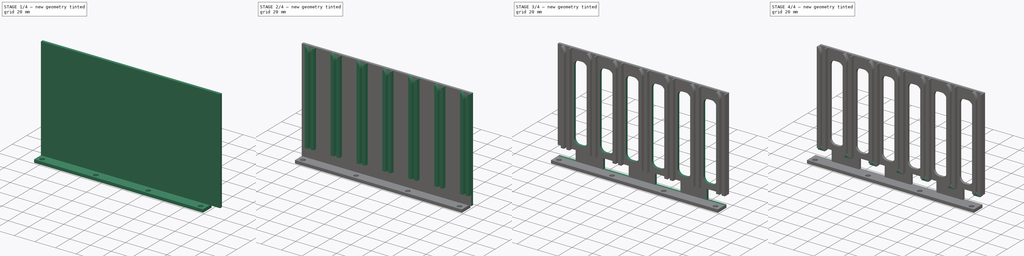
[diagram: build sequence overview — one tinted view per stage of 4, left to right]
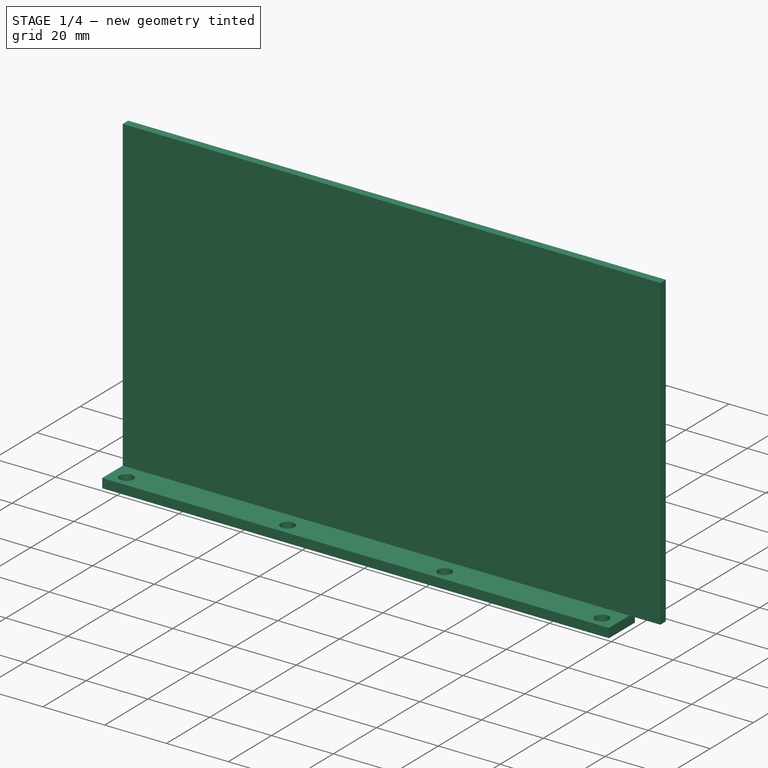
[diagram: stage 1 of 4 — iso view after this stage's code; geometry added in this stage tinted green]
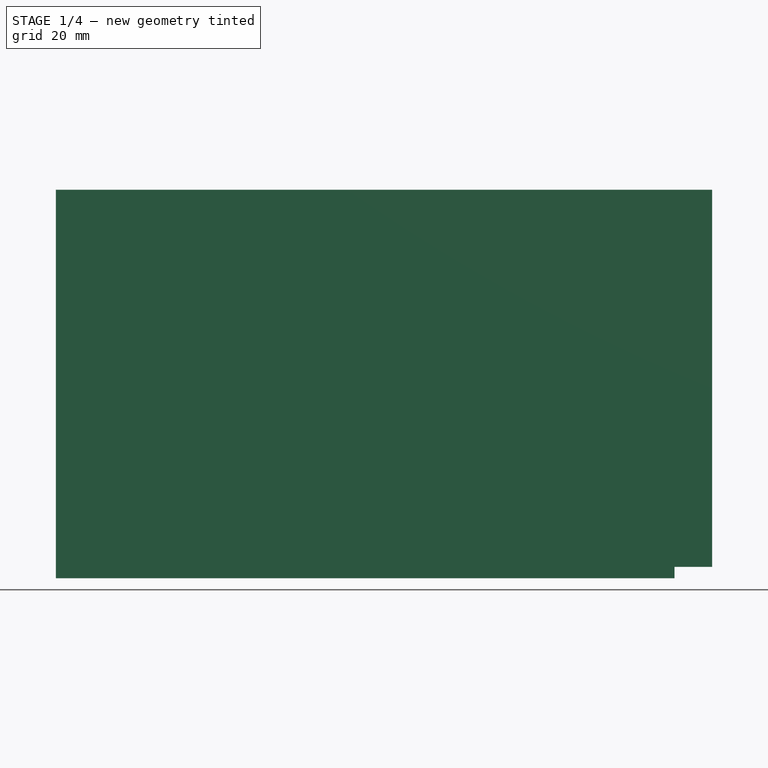
[diagram: stage 1 of 4 — front view after this stage's code; geometry added in this stage tinted green]
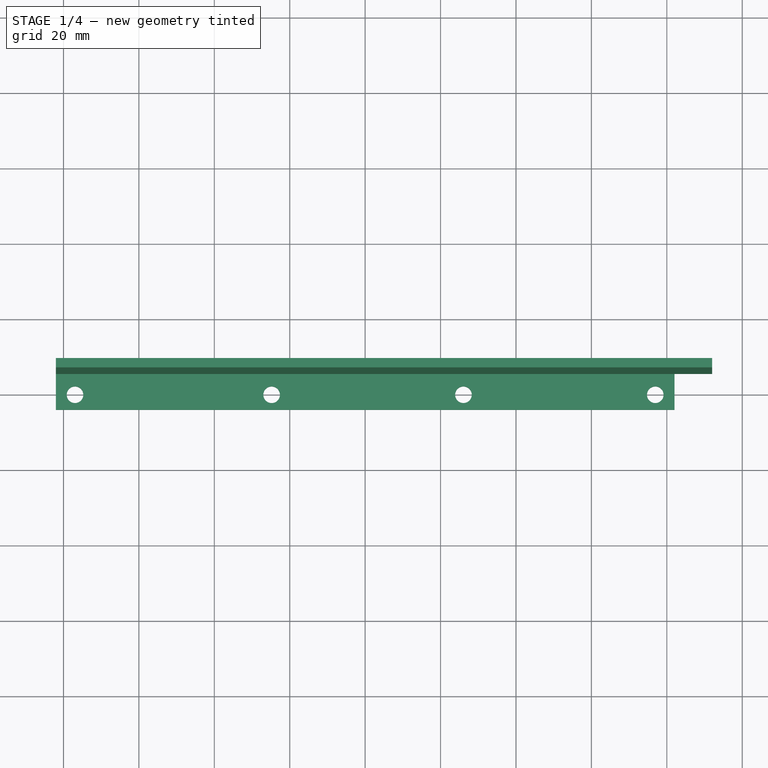
[diagram: stage 1 of 4 — top view after this stage's code; geometry added in this stage tinted green]
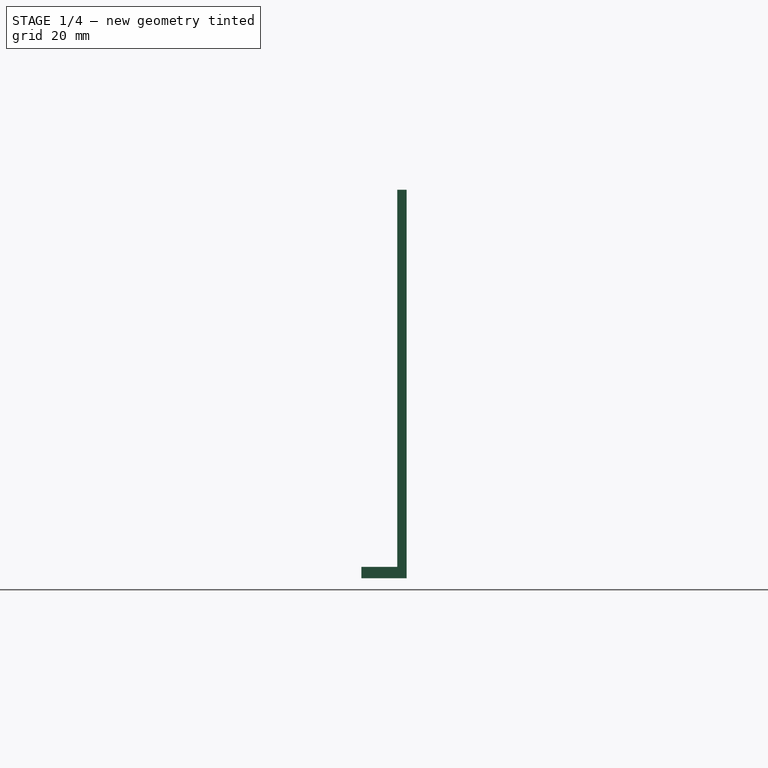
[diagram: stage 1 of 4 — right view after this stage's code; geometry added in this stage tinted green]
FCSTD DOCUMENT  (FreeCAD 0.18R14555 (Git shallow))
Label: Card Guide V3
License: All rights reserved
LicenseURL: http://en.wikipedia.org/wiki/All_rights_reserved
objects: Sketcher::SketchObject×7, PartDesign::Pocket×4, PartDesign::Pad×3, PartDesign::LinearPattern×2, Part::Feature×1, Part::FeaturePython×1, PartDesign::Body×1
note: 26 computed .brp shape members not serialized (recipe doc carries the construction recipe); baked Part::Feature solids carry a one-line shape summary decoded from their .brp

FEATURE [Sketcher::SketchObject] Sketch  label="Bottom Mounting Strip profile"
  MapMode = 5
  Support = -> [XY_Plane]
  sketch-geometry (8):
    g0: LineSegment StartX=-82.0311 StartY=8 StartZ=0 EndX=82.0311 EndY=8 EndZ=0
    g1: LineSegment StartX=82.0311 StartY=8 StartZ=0 EndX=82.0311 EndY=-4 EndZ=0
    g2: LineSegment StartX=82.0311 StartY=-4 StartZ=0 EndX=-82.0311 EndY=-4 EndZ=0
    g3: LineSegment StartX=-82.0311 StartY=-4 StartZ=0 EndX=-82.0311 EndY=8 EndZ=0
    g4: Circle CenterX=-76.9439 CenterY=0 CenterZ=0 NormalX=0 NormalY=0 NormalZ=1 AngleXU=0 Radius=2.2
    g5: Circle CenterX=-24.8001 CenterY=0 CenterZ=0 NormalX=0 NormalY=0 NormalZ=1 AngleXU=0 Radius=2.2
    g6: Circle CenterX=26.0719 CenterY=0 CenterZ=0 NormalX=0 NormalY=0 NormalZ=1 AngleXU=0 Radius=2.2
    g7: Circle CenterX=76.9439 CenterY=0 CenterZ=0 NormalX=0 NormalY=0 NormalZ=1 AngleXU=0 Radius=2.2
  constraints (24):
    c: Coincident(g0,g1)
    c: Coincident(g1,g2)
    c: Coincident(g2,g3)
    c: Coincident(g3,g0)
    c: Horizontal(g0)
    c: Horizontal(g2)
    c: Vertical(g1)
    c: Vertical(g3)
    c: Radius(g4) = 2.2
    c: Equal(g4,g5)
    c: Equal(g4,g6)
    c: Equal(g4,g7)
    c: PointOnObject(g4,g-1)
    c: PointOnObject(g5,g-1)
    c: PointOnObject(g6,g-1)
    c: PointOnObject(g7,g-1)
    c: DistanceX(g2,g4) = 5.0872
    c: DistanceX(g7,g1) = 5.0872
    c: DistanceX(g2,g5) = 57.231
    c: DistanceX(g2,g6) = 108.103
    c: DistanceX(g2,g7) = 158.975
    c: Symmetric(g0,g0,g-2)
    c: DistanceY(g4,g0) = 8
    c: DistanceY(g2,g4) = 4
FEATURE [PartDesign::Pad] Pad  label="Bottom Mounting Strip"
  Length = 3
  Length2 = 100
  Profile = -> Sketch
  Type = 0
FEATURE [Sketcher::SketchObject] Sketch001  label="Guide plate cross section"
  ExternalGeometry = -> [Pad]
  MapMode = 5
  Placement = pos=(0,0,3) rot=(0,0,1;0rad)
  Support = -> [Pad]
  sketch-geometry (4):
    g0: LineSegment StartX=-82.0311 StartY=8 StartZ=0 EndX=92.0311 EndY=8 EndZ=0
    g1: LineSegment StartX=92.0311 StartY=8 StartZ=0 EndX=92.0311 EndY=5.5 EndZ=0
    g2: LineSegment StartX=92.0311 StartY=5.5 StartZ=0 EndX=-82.0311 EndY=5.5 EndZ=0
    g3: LineSegment StartX=-82.0311 StartY=5.5 StartZ=0 EndX=-82.0311 EndY=8 EndZ=0
  constraints (11):
    c: Coincident(g0,g1)
    c: Coincident(g1,g2)
    c: Coincident(g2,g3)
    c: Coincident(g3,g0)
    c: Horizontal(g0)
    c: Horizontal(g2)
    c: Vertical(g1)
    c: Vertical(g3)
    c: Distance(g3) = 2.5
    c: Coincident(g0,g-3)
    c: DistanceX(g-4,g0) = 10
FEATURE [PartDesign::Pad] Pad001  label="Add guide plate"
  BaseFeature = -> Pad
  Length = 100
  Length2 = 100
  Profile = -> Sketch001
  Type = 0
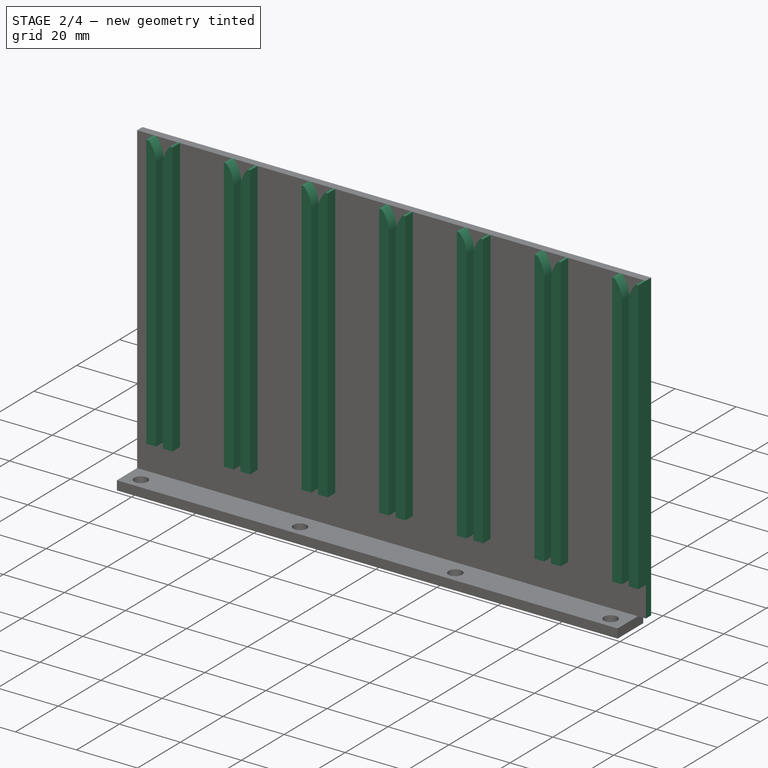
[diagram: stage 2 of 4 — iso view after this stage's code; geometry added in this stage tinted green]
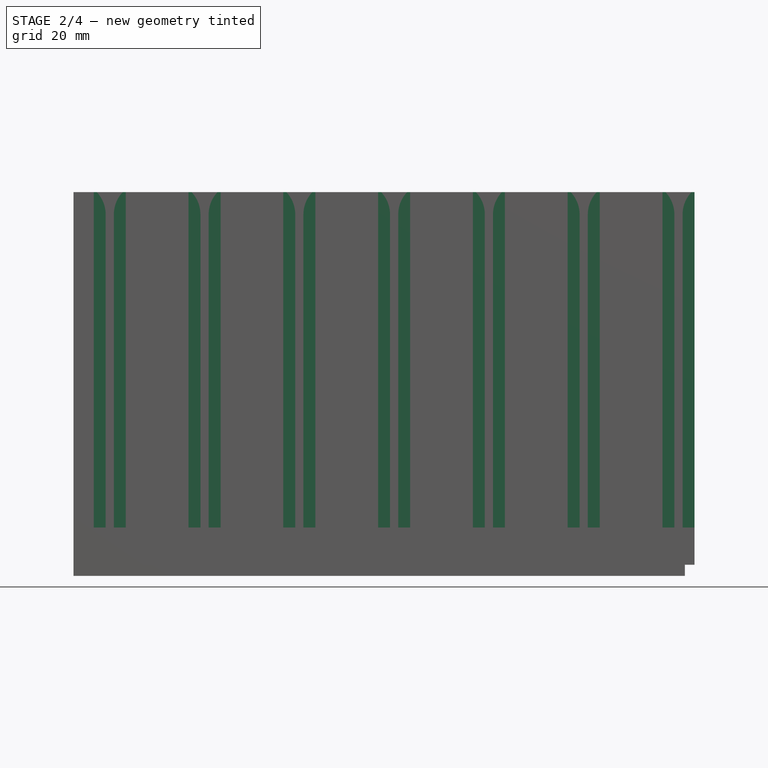
[diagram: stage 2 of 4 — front view after this stage's code; geometry added in this stage tinted green]
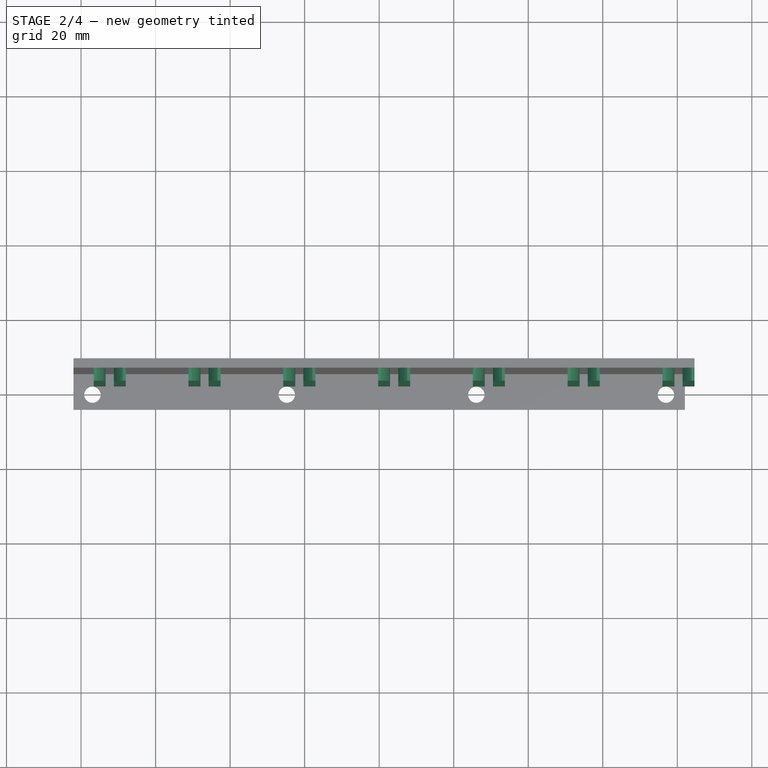
[diagram: stage 2 of 4 — top view after this stage's code; geometry added in this stage tinted green]
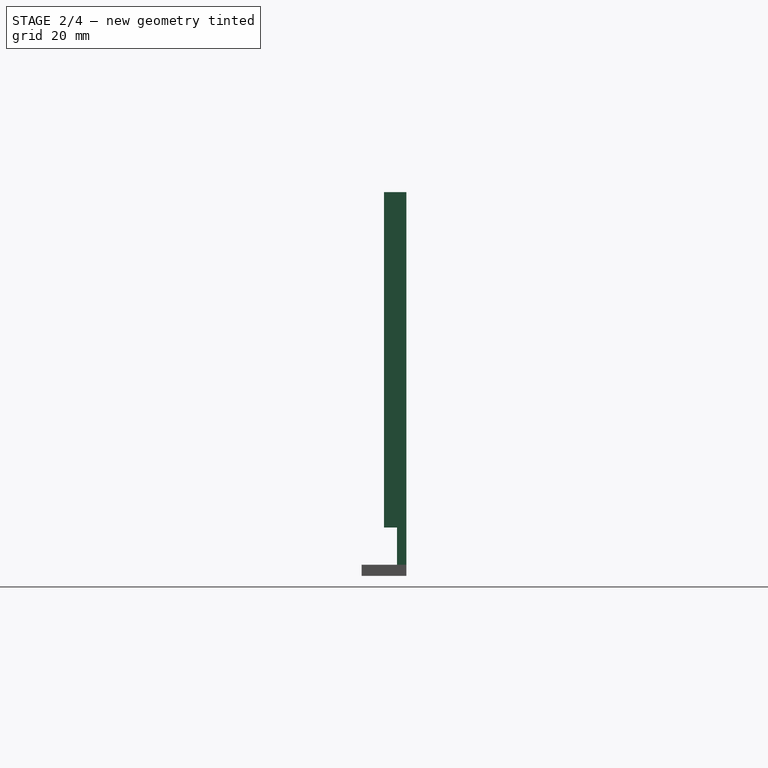
[diagram: stage 2 of 4 — right view after this stage's code; geometry added in this stage tinted green]
FEATURE [Sketcher::SketchObject] Sketch002  label="Guide Shape"
  ExternalGeometry = -> [Pad001]
  MapMode = 5
  Placement = pos=(0,5.5,0) rot=(1,0,0;1.5708rad)
  Support = -> [Pad001]
  sketch-geometry (13):
    g0: LineSegment StartX=-75.8 StartY=103 StartZ=0 EndX=-76.6 EndY=103 EndZ=0
    g1: LineSegment StartX=-76.6 StartY=103 StartZ=0 EndX=-76.6 EndY=13 EndZ=0
    g2: LineSegment StartX=-68 StartY=13 StartZ=0 EndX=-68 EndY=103 EndZ=0
    g3: LineSegment StartX=-68 StartY=103 StartZ=0 EndX=-68.8 EndY=103 EndZ=0
    g4: LineSegment StartX=-71.2 StartY=97 StartZ=0 EndX=-71.2 EndY=13 EndZ=0
    g5: LineSegment StartX=-73.4 StartY=13 StartZ=0 EndX=-73.4 EndY=97 EndZ=0
    g6: ArcOfCircle CenterX=-82.1 CenterY=97 CenterZ=0 NormalX=0 NormalY=0 NormalZ=1 AngleXU=0 Radius=8.7 StartAngle=0 EndAngle=0.761013
    g7: ArcOfCircle CenterX=-62.5 CenterY=97 CenterZ=0 NormalX=0 NormalY=0 NormalZ=1 AngleXU=0 Radius=8.7 StartAngle=2.38058 EndAngle=3.14159
    g8: LineSegment [constr] StartX=-72.3 StartY=13 StartZ=0 EndX=-72.3 EndY=103 EndZ=0
    g9: LineSegment [constr] StartX=-75.8 StartY=103 StartZ=0 EndX=-68.8 EndY=103 EndZ=0
    g10: LineSegment StartX=-68 StartY=13 StartZ=0 EndX=-71.2 EndY=13 EndZ=0
    g11: LineSegment StartX=-73.4 StartY=13 StartZ=0 EndX=-76.6 EndY=13 EndZ=0
    g12: LineSegment [constr] StartX=-71.2 StartY=13 StartZ=0 EndX=-73.4 EndY=13 EndZ=0
  constraints (36):
    c: Coincident(g0,g1)
    c: Coincident(g2,g3)
    c: Vertical(g1)
    c: Vertical(g5)
    c: Vertical(g4)
    c: Vertical(g2)
    c: Horizontal(g0)
    c: Horizontal(g3)
    c: DistanceX(g1,g5) = 3.2
    c: Equal(g5,g4)
    c: Equal(g1,g2)
    c: Distance(g0) = 0.8
    c: Equal(g0,g3)
    c: DistanceY(g5,g0) = 6
    c: Tangent(g6,g5) = -1.5708
    c: Coincident(g6,g0)
    c: Tangent(g7,g4) = -1.5708
    c: Coincident(g7,g3)
    c: Symmetric(g5,g4,g8)
    c: Symmetric(g0,g2,g8)
    c: Coincident(g9,g0)
    c: Coincident(g9,g3)
    c: PointOnObject(g8,g9)
    c: DistanceX(g8) = -72.3
    c: Tangent(g0,g-3) = -1.5708
    c: Horizontal(g11)
    c: Horizontal(g10)
    c: Coincident(g10,g2)
    c: Coincident(g11,g1)
    c: Coincident(g5,g11)
    c: Coincident(g10,g4)
    c: DistanceX(g5,g4) = 2.2
    c: Coincident(g12,g5)
    c: Coincident(g12,g4)
    c: PointOnObject(g8,g12)
    c: DistanceY(g-4,g1) = 10
FEATURE [PartDesign::Pad] Pad002  label="Add Guide"
  BaseFeature = -> Pad001
  Length = 3.5
  Length2 = 100
  Profile = -> Sketch002
  Type = 0
FEATURE [PartDesign::LinearPattern] LinearPattern  label="Add other guides"
  BaseFeature = -> Pad002
  Direction = -> Sketch002 [H_Axis]
  Length = 152.616
  Occurrences = 7
  Originals = -> [Pad002]
FEATURE [Sketcher::SketchObject] Sketch003  label="End waste trimmer tool"
  ExternalGeometry = -> [LinearPattern]
  MapMode = 5
  Placement = pos=(0,5.5,0) rot=(1,0,0;1.5708rad)
  Support = -> [LinearPattern]
  sketch-geometry (4):
    g0: LineSegment StartX=92.0311 StartY=103 StartZ=0 EndX=84.616 EndY=103 EndZ=0
    g1: LineSegment StartX=84.616 StartY=103 StartZ=0 EndX=84.616 EndY=3 EndZ=0
    g2: LineSegment StartX=84.616 StartY=3 StartZ=0 EndX=92.0311 EndY=3 EndZ=0
    g3: LineSegment StartX=92.0311 StartY=3 StartZ=0 EndX=92.0311 EndY=103 EndZ=0
  constraints (11):
    c: Coincident(g0,g1)
    c: Coincident(g1,g2)
    c: Coincident(g2,g3)
    c: Coincident(g3,g0)
    c: Horizontal(g0)
    c: Horizontal(g2)
    c: Vertical(g1)
    c: Vertical(g3)
    c: Coincident(g2,g-5)
    c: PointOnObject(g-4,g1)
    c: Coincident(g-3,g0)
FEATURE [PartDesign::Pocket] Pocket  label="Trim end waste"
  BaseFeature = -> LinearPattern
  Length = 5
  Length2 = 100
  Profile = -> Sketch003
  Type = 1
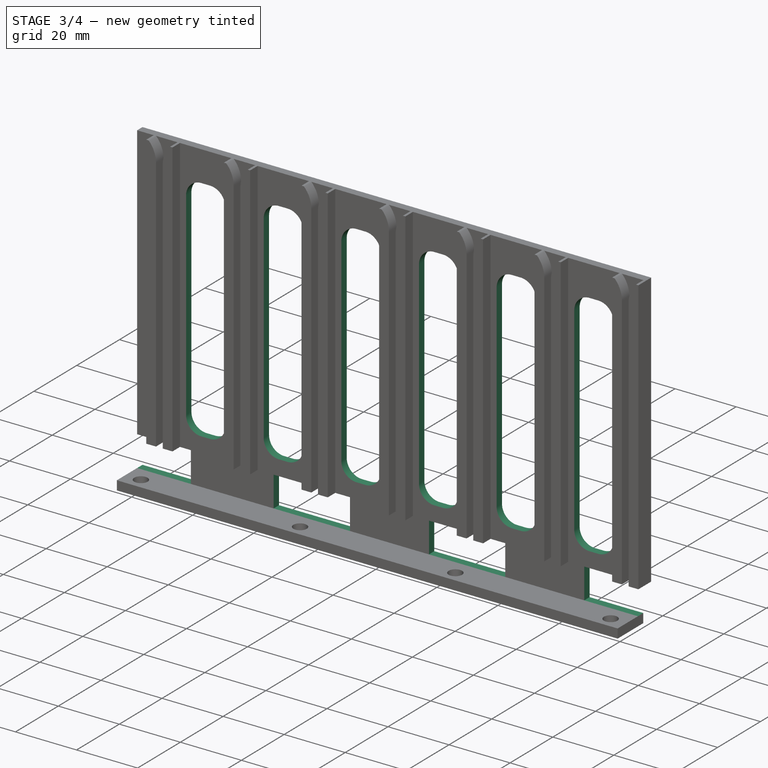
[diagram: stage 3 of 4 — iso view after this stage's code; geometry added in this stage tinted green]
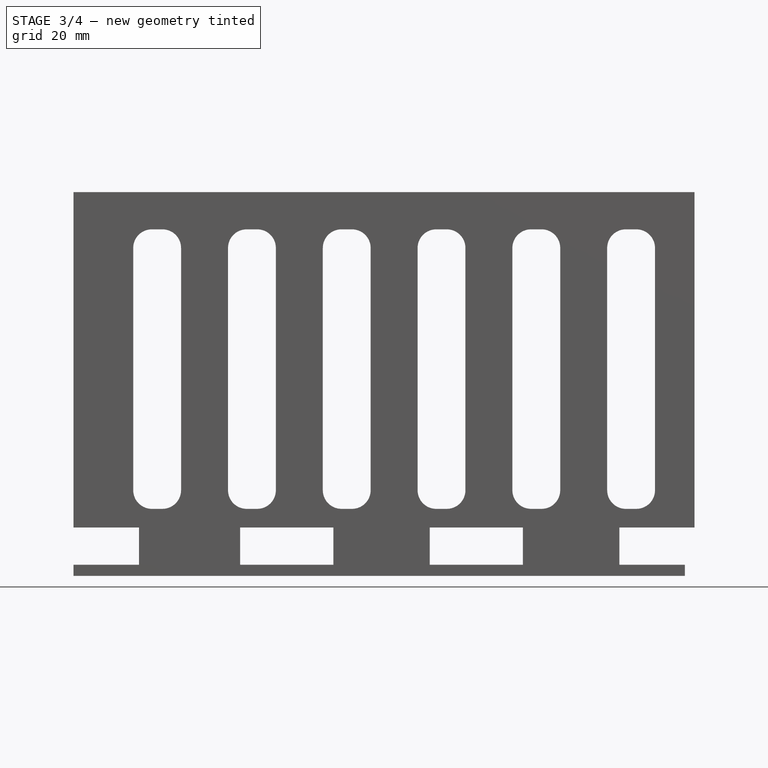
[diagram: stage 3 of 4 — front view after this stage's code; geometry added in this stage tinted green]
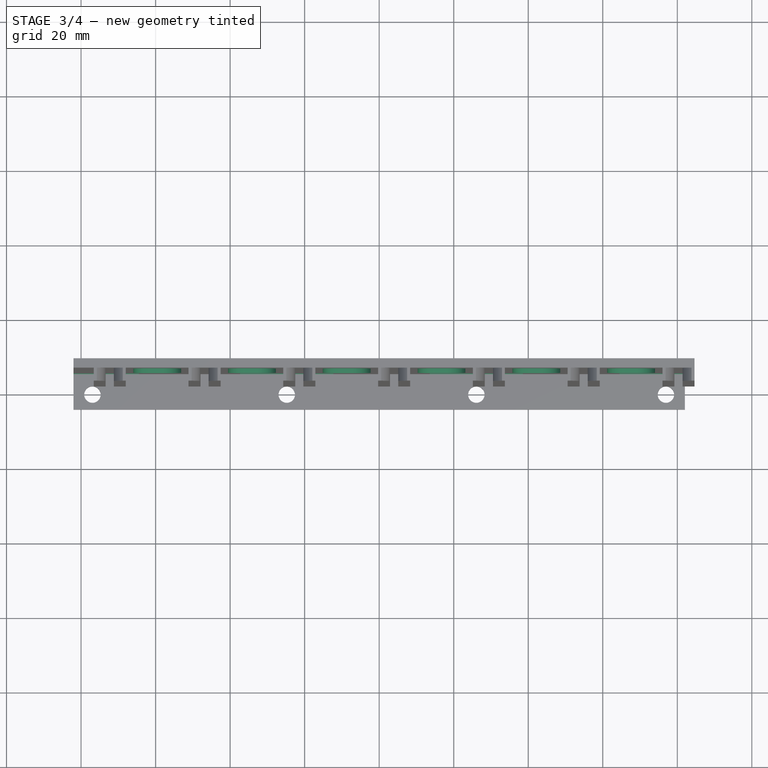
[diagram: stage 3 of 4 — top view after this stage's code; geometry added in this stage tinted green]
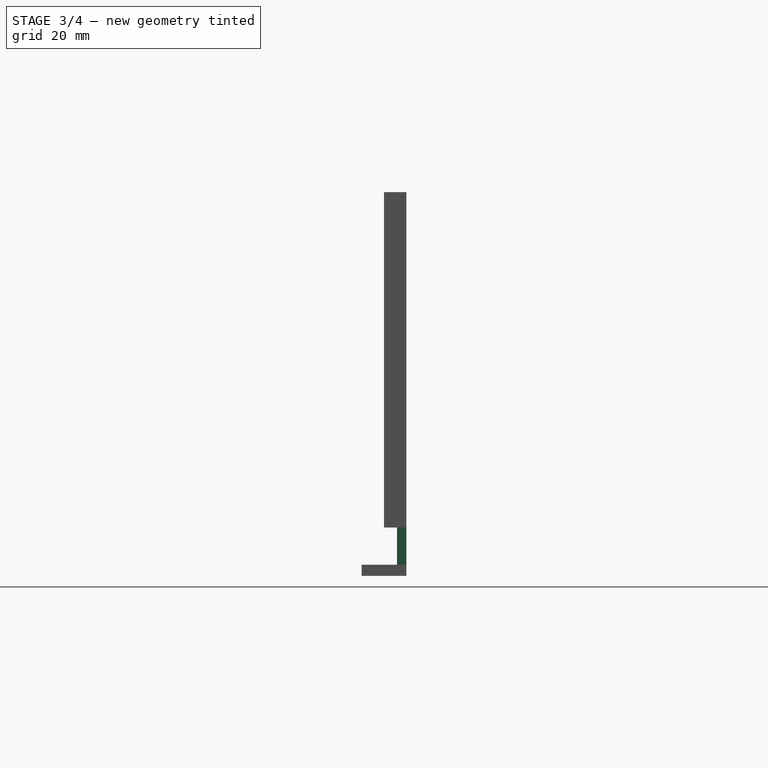
[diagram: stage 3 of 4 — right view after this stage's code; geometry added in this stage tinted green]
FEATURE [Sketcher::SketchObject] Sketch004  label="Inter-slot waste trim tool"
  ExternalGeometry = -> [Pocket]
  MapMode = 5
  Placement = pos=(0,5.5,0) rot=(1,0,0;1.5708rad)
  Support = -> [Pocket]
  sketch-geometry (8):
    g0: LineSegment StartX=-61 StartY=93 StartZ=0 EndX=-58.164 EndY=93 EndZ=0
    g1: LineSegment StartX=-53.164 StartY=88 StartZ=0 EndX=-53.164 EndY=23 EndZ=0
    g2: LineSegment StartX=-58.164 StartY=18 StartZ=0 EndX=-61 EndY=18 EndZ=0
    g3: LineSegment StartX=-66 StartY=23 StartZ=0 EndX=-66 EndY=88 EndZ=0
    g4: ArcOfCircle CenterX=-61 CenterY=88 CenterZ=0 NormalX=0 NormalY=0 NormalZ=1 AngleXU=0 Radius=5 StartAngle=1.5708 EndAngle=3.14159
    g5: ArcOfCircle CenterX=-58.164 CenterY=88 CenterZ=0 NormalX=0 NormalY=0 NormalZ=1 AngleXU=0 Radius=5 StartAngle=0 EndAngle=1.5708
    g6: ArcOfCircle CenterX=-58.164 CenterY=23 CenterZ=0 NormalX=0 NormalY=0 NormalZ=1 AngleXU=0 Radius=5 StartAngle=4.71239 EndAngle=6.28319
    g7: ArcOfCircle CenterX=-61 CenterY=23 CenterZ=0 NormalX=0 NormalY=0 NormalZ=1 AngleXU=0 Radius=5 StartAngle=3.14159 EndAngle=4.71239
  constraints (20):
    c: Horizontal(g0)
    c: Horizontal(g2)
    c: Vertical(g1)
    c: Vertical(g3)
    c: Tangent(g0,g4) = 1.5708
    c: Tangent(g3,g4) = 1.5708
    c: Tangent(g0,g5) = 1.5708
    c: Tangent(g1,g5) = 1.5708
    c: Tangent(g1,g6) = 1.5708
    c: Tangent(g2,g6) = 1.5708
    c: Tangent(g2,g7) = 1.5708
    c: Tangent(g3,g7) = 1.5708
    c: Radius(g7) = 5
    c: Equal(g7,g6)
    c: Equal(g7,g5)
    c: Equal(g7,g4)
    c: DistanceX(g-3,g3) = 2
    c: DistanceX(g1,g-4) = 2
    c: DistanceY(g0,g-3) = 10
    c: DistanceY(g-3,g2) = 5
FEATURE [PartDesign::Pocket] Pocket001  label="Trim between first two slots"
  BaseFeature = -> Pocket
  Length = 5
  Length2 = 100
  Profile = -> Sketch004
  Type = 1
FEATURE [PartDesign::LinearPattern] LinearPattern001
  BaseFeature = -> Pocket001
  Direction = -> Sketch004 [H_Axis]
  Length = 127.18
  Occurrences = 6
  Originals = -> [Pocket001]
FEATURE [Sketcher::SketchObject] Sketch005  label="Spanner Slot sketch"
  ExternalGeometry = -> [LinearPattern001]
  MapMode = 5
  Placement = pos=(0,5.5,0) rot=(1,0,0;1.5708rad)
  Support = -> [LinearPattern001]
  sketch-geometry (17):
    g0: LineSegment StartX=-89.4439 StartY=13 StartZ=0 EndX=-64.4439 EndY=13 EndZ=0
    g1: LineSegment StartX=-64.4439 StartY=13 StartZ=0 EndX=-64.4439 EndY=3 EndZ=0
    g2: LineSegment StartX=-64.4439 StartY=3 StartZ=0 EndX=-89.4439 EndY=3 EndZ=0
    g3: LineSegment StartX=-89.4439 StartY=3 StartZ=0 EndX=-89.4439 EndY=13 EndZ=0
    g4: LineSegment [constr] StartX=-76.9439 StartY=13 StartZ=0 EndX=-76.9439 EndY=3 EndZ=0
    g5: LineSegment StartX=-37.3001 StartY=13 StartZ=0 EndX=-12.3001 EndY=13 EndZ=0
    g6: LineSegment StartX=-12.3001 StartY=13 StartZ=0 EndX=-12.3001 EndY=3 EndZ=0
    g7: LineSegment StartX=-12.3001 StartY=3 StartZ=0 EndX=-37.3001 EndY=3 EndZ=0
    g8: LineSegment StartX=-37.3001 StartY=3 StartZ=0 EndX=-37.3001 EndY=13 EndZ=0
    g9: LineSegment StartX=13.5719 StartY=13 StartZ=0 EndX=38.5719 EndY=13 EndZ=0
    g10: LineSegment StartX=38.5719 StartY=13 StartZ=0 EndX=38.5719 EndY=3 EndZ=0
    g11: LineSegment StartX=38.5719 StartY=3 StartZ=0 EndX=13.5719 EndY=3 EndZ=0
    g12: LineSegment StartX=13.5719 StartY=3 StartZ=0 EndX=13.5719 EndY=13 EndZ=0
    g13: LineSegment StartX=64.4439 StartY=13 StartZ=0 EndX=89.4439 EndY=13 EndZ=0
    g14: LineSegment StartX=89.4439 StartY=13 StartZ=0 EndX=89.4439 EndY=3 EndZ=0
    g15: LineSegment StartX=89.4439 StartY=3 StartZ=0 EndX=64.4439 EndY=3 EndZ=0
    g16: LineSegment StartX=64.4439 StartY=3 StartZ=0 EndX=64.4439 EndY=13 EndZ=0
  constraints (51):
    c: Coincident(g0,g1)
    c: Coincident(g1,g2)
    c: Coincident(g2,g3)
    c: Coincident(g3,g0)
    c: Horizontal(g0)
    c: Horizontal(g2)
    c: Vertical(g1)
    c: Vertical(g3)
    c: Distance(g0) = 25
    c: Distance(g3) = 10
    c: Perpendicular(g4,g0) = 1.5708
    c: PointOnObject(g4,g2)
    c: Symmetric(g2,g1,g4)
    c: DistanceX(g-3,g4) = 5.0872
    c: PointOnObject(g-3,g2)
    c: Coincident(g5,g6)
    c: Coincident(g6,g7)
    c: Coincident(g7,g8)
    c: Coincident(g8,g5)
    c: Horizontal(g5)
    c: Horizontal(g7)
    c: Vertical(g6)
    c: Vertical(g8)
    c: Coincident(g9,g10)
    c: Coincident(g10,g11)
    c: Coincident(g11,g12)
    c: Coincident(g12,g9)
    c: Horizontal(g9)
    c: Horizontal(g11)
    c: Vertical(g10)
    c: Vertical(g12)
    c: Coincident(g13,g14)
    c: Coincident(g14,g15)
    c: Coincident(g15,g16)
    c: Coincident(g16,g13)
    c: Horizontal(g13)
    c: Horizontal(g15)
    c: Vertical(g14)
    c: Vertical(g16)
    c: Equal(g0,g5)
    c: Equal(g5,g9)
    c: Equal(g9,g13)
    c: Equal(g14,g10)
    c: Equal(g10,g6)
    c: Equal(g6,g1)
    c: PointOnObject(g7,g-4)
    c: PointOnObject(g11,g-4)
    c: PointOnObject(g15,g-4)
    c: DistanceX(g1,g6) = 52.1438
    c: DistanceX(g6,g10) = 50.872
    c: DistanceX(g10,g14) = 50.872
FEATURE [PartDesign::Pocket] Pocket002  label="Nr Finished Guide"
  BaseFeature = -> LinearPattern001
  Length = 5
  Length2 = 100
  Profile = -> Sketch005
  Type = 1
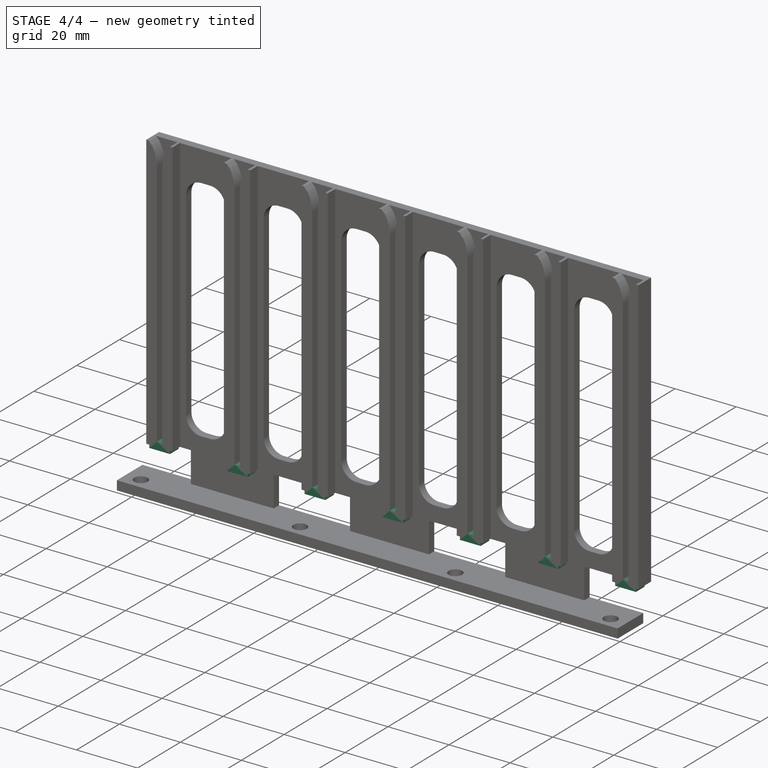
[diagram: stage 4 of 4 — iso view after this stage's code; geometry added in this stage tinted green]
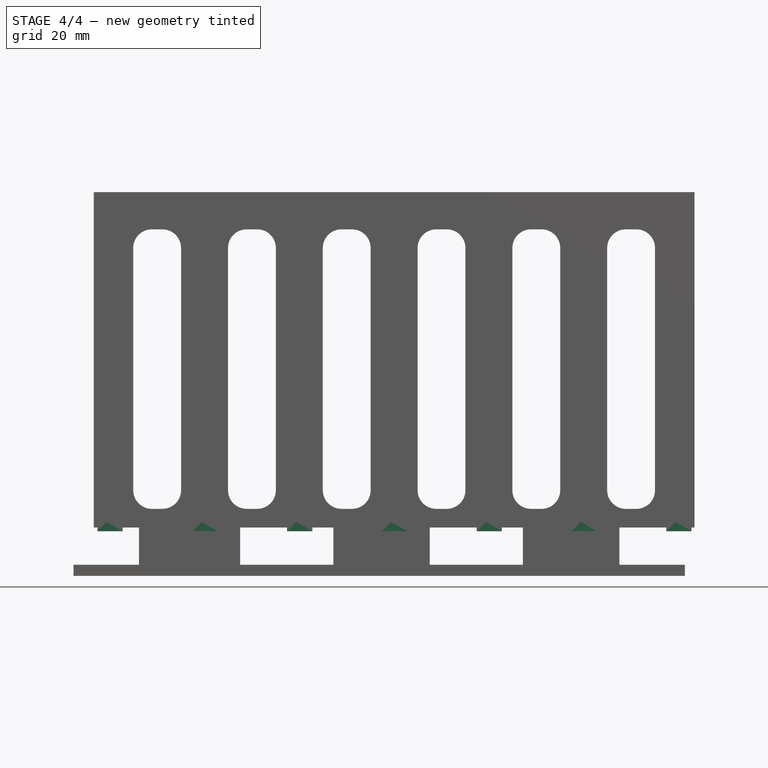
[diagram: stage 4 of 4 — front view after this stage's code; geometry added in this stage tinted green]
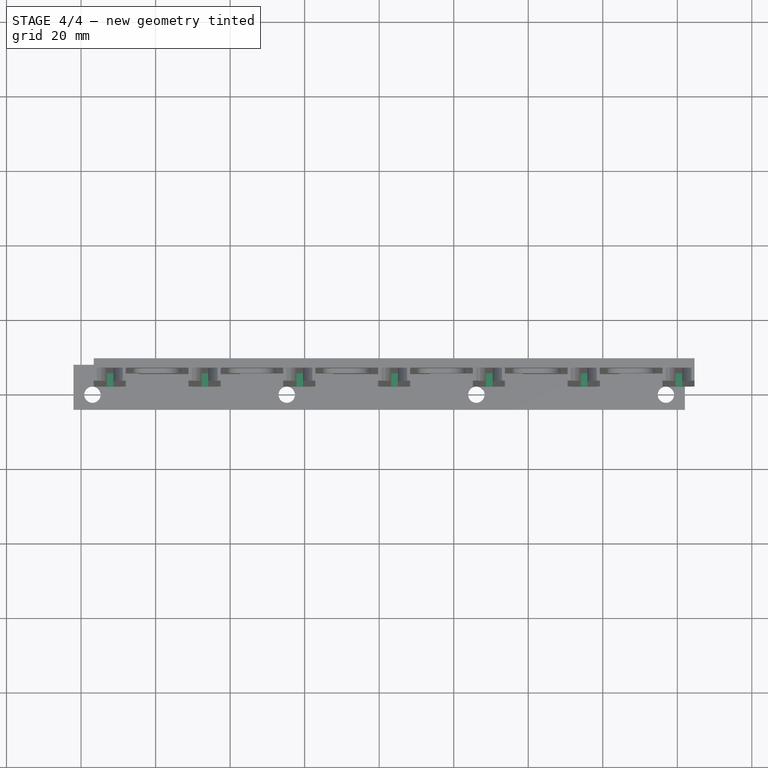
[diagram: stage 4 of 4 — top view after this stage's code; geometry added in this stage tinted green]
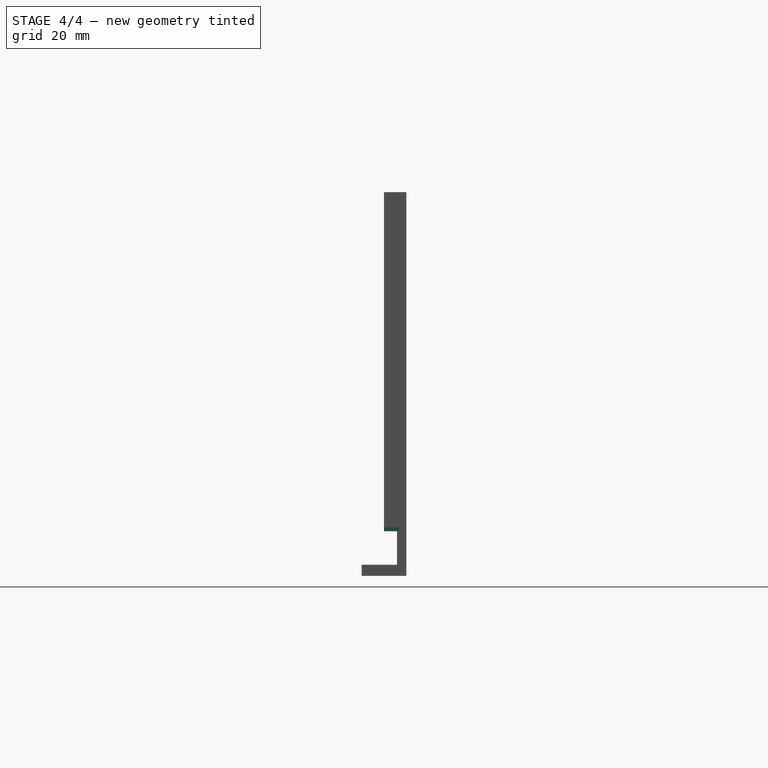
[diagram: stage 4 of 4 — right view after this stage's code; geometry added in this stage tinted green]
FEATURE [Part::Feature] Part__Feature  label="Guide_Section"
  Placement = pos=(-72.22,6,12) rot=(0,0,1;0rad)
  shape: bbox 6.8 x 4 x 90 mm, 12 faces (baked)
FEATURE [Part::FeaturePython] Array  # Draft array (typed FeaturePython)
  Angle = 360
  ArrayType = 0
  Axis = (0,0,1)
  Base = -> Part__Feature
  Center = (0,0,0)
  Fuse = false
  IntervalAxis = (0,0,0)
  IntervalX = (25.44,0,0)
  IntervalY = (0,1,0)
  IntervalZ = (0,0,0)
  NumberPolar = 1
  NumberX = 7
  NumberY = 1
  NumberZ = 1
FEATURE [Sketcher::SketchObject] Sketch006  label="Final trim"
  ExternalGeometry = -> [Pocket002]
  MapMode = 5
  Placement = pos=(0,5.5,0) rot=(1,0,0;1.5708rad)
  Support = -> [Pocket002]
  sketch-geometry (4):
    g0: LineSegment StartX=-76.6 StartY=103 StartZ=0 EndX=-82.0311 EndY=103 EndZ=0
    g1: LineSegment StartX=-82.0311 StartY=103 StartZ=0 EndX=-82.0311 EndY=13 EndZ=0
    g2: LineSegment StartX=-82.0311 StartY=13 StartZ=0 EndX=-76.6 EndY=13 EndZ=0
    g3: LineSegment StartX=-76.6 StartY=13 StartZ=0 EndX=-76.6 EndY=103 EndZ=0
  constraints (10):
    c: Coincident(g0,g1)
    c: Coincident(g1,g2)
    c: Coincident(g2,g3)
    c: Coincident(g3,g0)
    c: Horizontal(g0)
    c: Horizontal(g2)
    c: Vertical(g1)
    c: Vertical(g3)
    c: Coincident(g1,g-3)
    c: Coincident(g-4,g0)
FEATURE [PartDesign::Pocket] Pocket003  label="Finished Guide"
  BaseFeature = -> Pocket002
  Length = 5
  Length2 = 100
  Profile = -> Sketch006
  Type = 1
FEATURE [PartDesign::Body] Body
  Group = -> [Sketch,Pad,Sketch001,Pad001,Sketch002,Pad002,LinearPattern,Sketch003,Pocket,Sketch004,Pocket001,LinearPattern001,Sketch005,Pocket002,Sketch006,Pocket003]
  Origin = -> Origin
  Tip = -> Pocket003
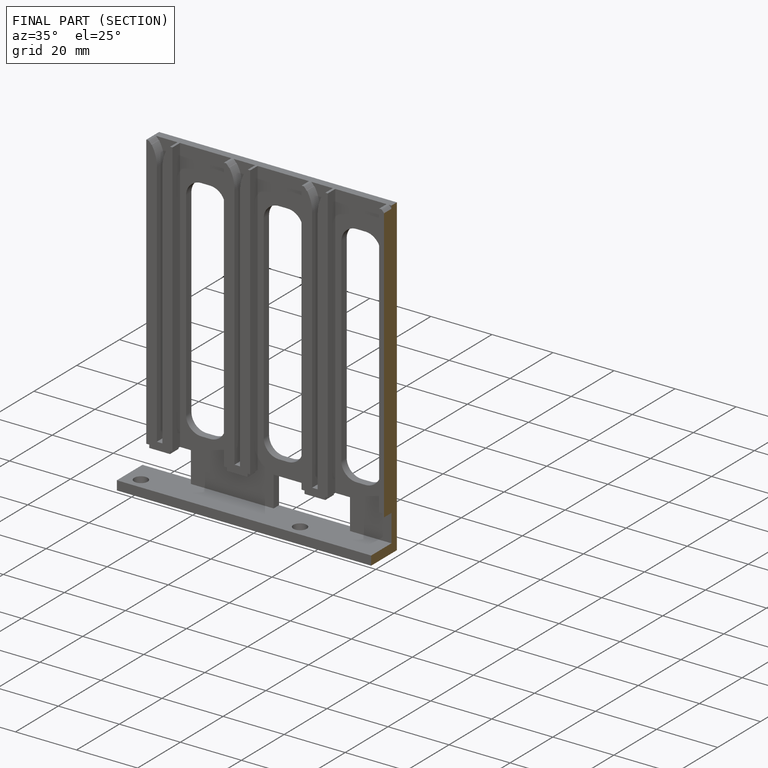
[diagram: finished part — half-section view (interior)]
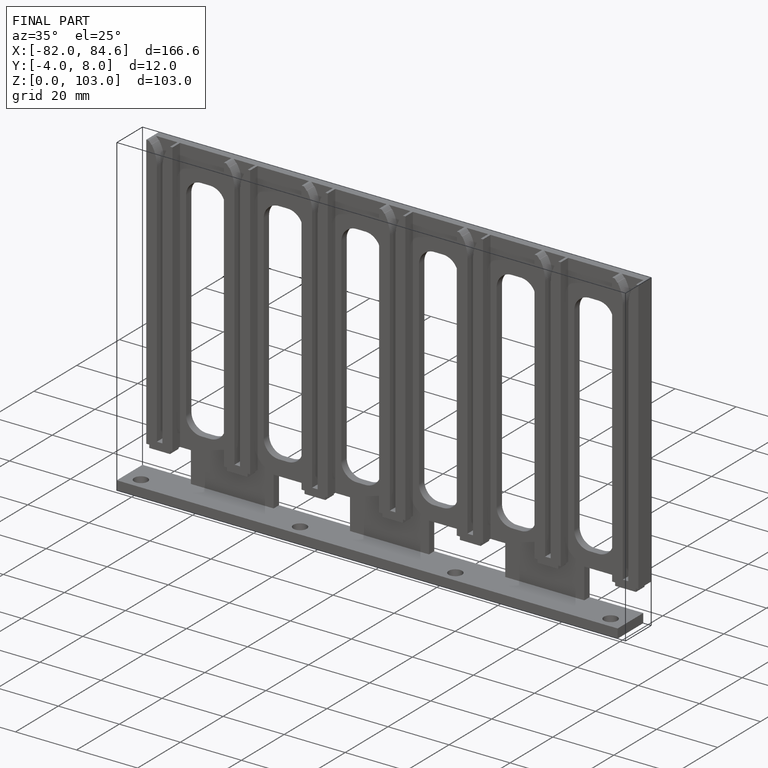
[diagram: finished part — iso view with bounding-box wireframe]
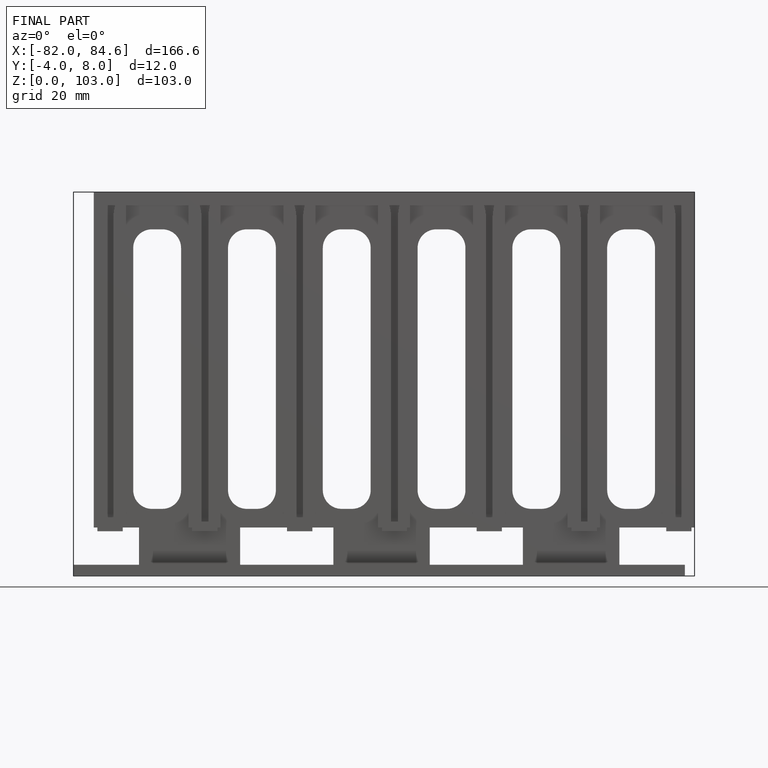
[diagram: finished part — front view with bounding-box wireframe]
